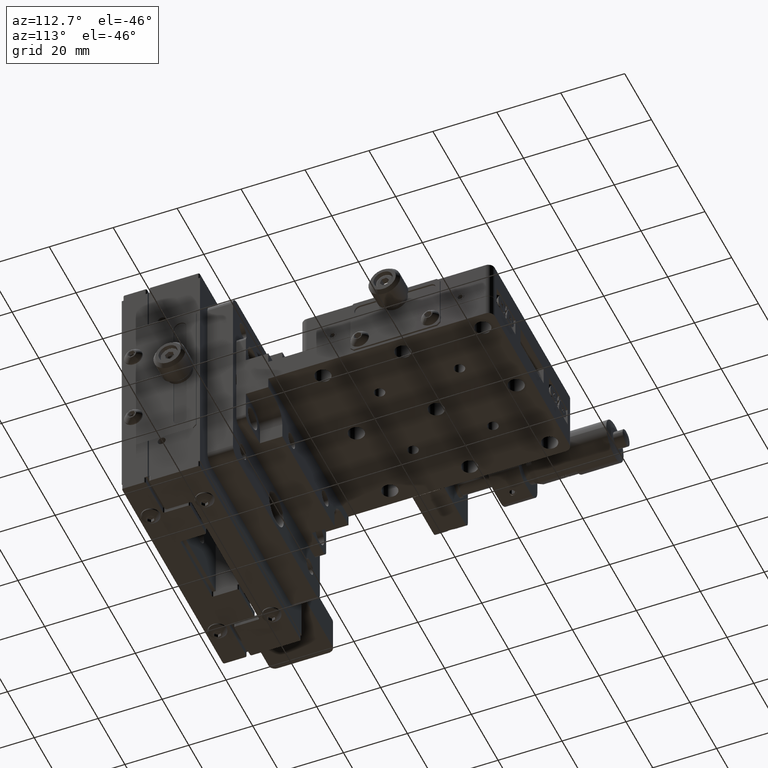
[diagram: clean part render]
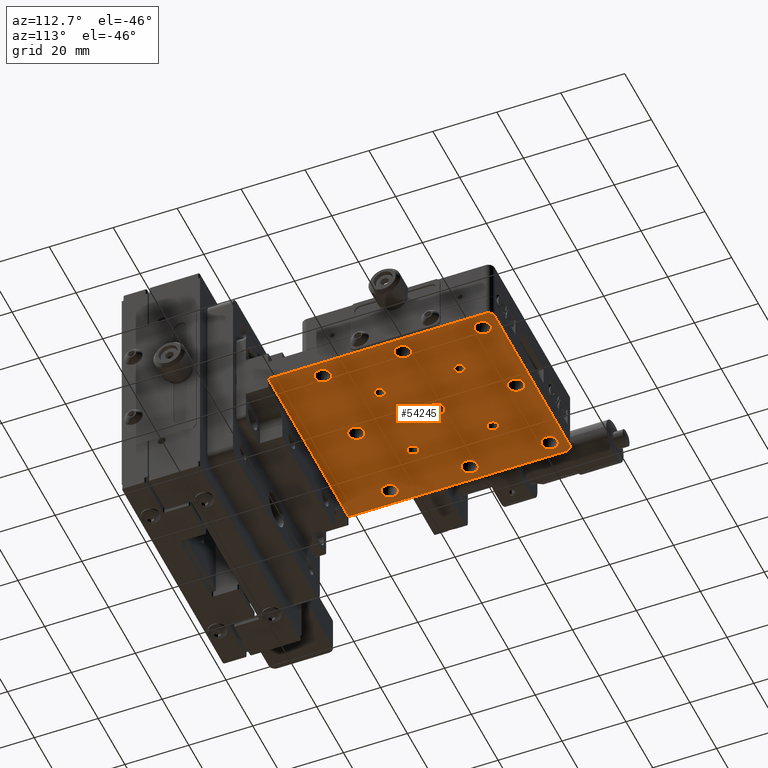
[diagram: same view with one face highlighted and labeled with its STEP entity id]
A machine part, auxiliary view. The second image highlights one B-rep face of the part: STEP entity #54245.
In plain terms, the highlighted planar face has unit normal (0, -0, 1).
Its self-contained STEP definition (entity closure, byte-faithful):
#153 = EDGE_CURVE ( 'NONE', #53122, #63395, #7263, .T. ) ;
#306 = DIRECTION ( 'NONE',  ( 0.0000000000000000000, 1.000000000000000000, 2.628368902995186700E-016 ) ) ;
#580 = CARTESIAN_POINT ( 'NONE',  ( -12.50000000000007600, 71.65000000000024700, -3.499999999999931200 ) ) ;
#1148 = CIRCLE ( 'NONE', #40706, 2.499999999999988500 ) ;
#1216 = DIRECTION ( 'NONE',  ( 0.0000000000000000000, 1.000000000000000000, 1.734723475976815200E-016 ) ) ;
#1233 = AXIS2_PLACEMENT_3D ( 'NONE', #49389, #19116, #54452 ) ;
#1262 = AXIS2_PLACEMENT_3D ( 'NONE', #12143, #47543, #17240 ) ;
#1454 = CARTESIAN_POINT ( 'NONE',  ( -2.909660393859445900E-015, 60.00000000000026300, -3.499999999999951200 ) ) ;
#1705 = ORIENTED_EDGE ( 'NONE', *, *, #35743, .F. ) ;
#1865 = ORIENTED_EDGE ( 'NONE', *, *, #42310, .F. ) ;
#1979 = EDGE_LOOP ( 'NONE', ( #57376, #49546 ) ) ;
#2120 = ORIENTED_EDGE ( 'NONE', *, *, #59145, .T. ) ;
#2196 = AXIS2_PLACEMENT_3D ( 'NONE', #25852, #61205, #30951 ) ;
#2227 = CARTESIAN_POINT ( 'NONE',  ( -24.99999999999999600, 55.00000000000027000, -3.499999999999929800 ) ) ;
#2233 = VERTEX_POINT ( 'NONE', #53600 ) ;
#2484 = EDGE_LOOP ( 'NONE', ( #12495, #22848 ) ) ;
#2511 = CARTESIAN_POINT ( 'NONE',  ( 24.99999999999998600, 57.50000000000027700, -3.499999999999990200 ) ) ;
#3407 = EDGE_CURVE ( 'NONE', #57933, #2233, #31504, .T. ) ;
#3413 = ORIENTED_EDGE ( 'NONE', *, *, #3407, .F. ) ;
#3553 = EDGE_LOOP ( 'NONE', ( #52028, #1705 ) ) ;
#3615 = CARTESIAN_POINT ( 'NONE',  ( 24.99999999999992500, 85.00000000000028400, -3.499999999999986200 ) ) ;
#3641 = AXIS2_PLACEMENT_3D ( 'NONE', #19834, #55166, #24972 ) ;
#3664 = ORIENTED_EDGE ( 'NONE', *, *, #27355, .F. ) ;
#3827 = CIRCLE ( 'NONE', #29497, 2.000000000000001800 ) ;
#5201 = CARTESIAN_POINT ( 'NONE',  ( 1.176011414782421200E-015, 55.00000000000028400, -3.499999999999966700 ) ) ;
#5216 = VERTEX_POINT ( 'NONE', #35269 ) ;
#5546 = VERTEX_POINT ( 'NONE', #52707 ) ;
#5602 = ORIENTED_EDGE ( 'NONE', *, *, #18945, .F. ) ;
#5683 = EDGE_CURVE ( 'NONE', #20408, #35049, #45443, .T. ) ;
#5763 = AXIS2_PLACEMENT_3D ( 'NONE', #38302, #7984, #43335 ) ;
#5779 = EDGE_CURVE ( 'NONE', #51133, #8688, #10620, .T. ) ;
#6370 = EDGE_LOOP ( 'NONE', ( #34543, #19363 ) ) ;
#7014 = CARTESIAN_POINT ( 'NONE',  ( 30.00000000000000400, 112.5000000000002800, -3.500000000000002200 ) ) ;
#7158 = FACE_BOUND ( 'NONE', #32233, .T. ) ;
#7234 = CARTESIAN_POINT ( 'NONE',  ( -25.00000000000007800, 82.50000000000028400, -3.499999999999909400 ) ) ;
#7263 = LINE ( 'NONE', #36998, #19153 ) ;
#7631 = DIRECTION ( 'NONE',  ( 0.0000000000000000000, 1.000000000000000000, 1.734723475976815200E-016 ) ) ;
#7690 = VERTEX_POINT ( 'NONE', #43094 ) ;
#7839 = CIRCLE ( 'NONE', #3641, 2.499999999999988500 ) ;
#7984 = DIRECTION ( 'NONE',  ( -8.818902597906268200E-016, 6.009861815198150700E-015, -1.000000000000000000 ) ) ;
#8181 = AXIS2_PLACEMENT_3D ( 'NONE', #29830, #65136, #34898 ) ;
#8261 = EDGE_CURVE ( 'NONE', #50230, #9044, #1148, .T. ) ;
#8671 = CARTESIAN_POINT ( 'NONE',  ( -2.563213294065521200E-015, 57.50000000000027000, -3.499999999999951600 ) ) ;
#8688 = VERTEX_POINT ( 'NONE', #30212 ) ;
#8763 = FACE_BOUND ( 'NONE', #57083, .T. ) ;
#9044 = VERTEX_POINT ( 'NONE', #9100 ) ;
#9100 = CARTESIAN_POINT ( 'NONE',  ( 24.99999999999999600, 110.0000000000002700, -3.499999999999980900 ) ) ;
#9206 = CARTESIAN_POINT ( 'NONE',  ( 12.50000000000000400, 95.00000000000029800, -3.499999999999964500 ) ) ;
#9624 = ORIENTED_EDGE ( 'NONE', *, *, #28084, .F. ) ;
#10351 = FACE_BOUND ( 'NONE', #33195, .T. ) ;
#10451 = EDGE_CURVE ( 'NONE', #44037, #36416, #60859, .T. ) ;
#10620 = CIRCLE ( 'NONE', #53460, 2.499999999999988500 ) ;
#10784 = ORIENTED_EDGE ( 'NONE', *, *, #153, .T. ) ;
#11251 = CARTESIAN_POINT ( 'NONE',  ( -24.99999999999998600, 105.0000000000002600, -3.499999999999921000 ) ) ;
#11374 = CIRCLE ( 'NONE', #13960, 2.499999999999988500 ) ;
#11695 = AXIS2_PLACEMENT_3D ( 'NONE', #13339, #48704, #18446 ) ;
#11898 = FACE_BOUND ( 'NONE', #2484, .T. ) ;
#11956 = AXIS2_PLACEMENT_3D ( 'NONE', #60939, #30673, #306 ) ;
#12143 = CARTESIAN_POINT ( 'NONE',  ( 28.00000000000000000, 110.5000000000002800, -3.499999999999991600 ) ) ;
#12317 = DIRECTION ( 'NONE',  ( 0.0000000000000000000, 1.000000000000000000, 1.734723475976815200E-016 ) ) ;
#12495 = ORIENTED_EDGE ( 'NONE', *, *, #59227, .F. ) ;
#12725 = CIRCLE ( 'NONE', #8181, 2.499999999999988500 ) ;
#13075 = CARTESIAN_POINT ( 'NONE',  ( -6.153883552326263100E-014, 82.50000000000029800, -3.499999999999948000 ) ) ;
#13339 = CARTESIAN_POINT ( 'NONE',  ( 12.50000000000000000, 70.00000000000028400, -3.499999999999968000 ) ) ;
#13722 = DIRECTION ( 'NONE',  ( -1.385788399175705800E-016, 1.000000000000000000, 1.734723475976815200E-016 ) ) ;
#13899 = CARTESIAN_POINT ( 'NONE',  ( -25.00000000000007800, 85.00000000000027000, -3.499999999999909000 ) ) ;
#13960 = AXIS2_PLACEMENT_3D ( 'NONE', #26649, #61992, #31744 ) ;
#13998 = CARTESIAN_POINT ( 'NONE',  ( -27.99999999999999300, 112.5000000000002600, -3.499999999999905900 ) ) ;
#14283 = DIRECTION ( 'NONE',  ( 0.0000000000000000000, 1.000000000000000000, 2.628368902995186700E-016 ) ) ;
#14382 = CARTESIAN_POINT ( 'NONE',  ( -12.50000000000007300, 95.00000000000028400, -3.499999999999928100 ) ) ;
#14671 = CIRCLE ( 'NONE', #30303, 2.499999999999988500 ) ;
#15275 = EDGE_CURVE ( 'NONE', #35049, #20408, #12725, .T. ) ;
#15740 = EDGE_LOOP ( 'NONE', ( #35914, #16434 ) ) ;
#16161 = DIRECTION ( 'NONE',  ( 1.385788399175705800E-016, -1.000000000000000000, -1.614549571717165100E-016 ) ) ;
#16434 = ORIENTED_EDGE ( 'NONE', *, *, #61600, .F. ) ;
#16709 = DIRECTION ( 'NONE',  ( -8.818902597906268200E-016, 6.009861815198150700E-015, -1.000000000000000000 ) ) ;
#17060 = EDGE_CURVE ( 'NONE', #34204, #24784, #54194, .T. ) ;
#17240 = DIRECTION ( 'NONE',  ( 0.0000000000000000000, 1.000000000000000000, 2.168404344971006900E-016 ) ) ;
#18164 = DIRECTION ( 'NONE',  ( -1.385788399175692000E-016, 1.000000000000000000, 1.734723475976815200E-016 ) ) ;
#18324 = EDGE_CURVE ( 'NONE', #36416, #44037, #34296, .T. ) ;
#18446 = DIRECTION ( 'NONE',  ( 0.0000000000000000000, 1.000000000000000000, 2.628368902995186700E-016 ) ) ;
#18675 = CARTESIAN_POINT ( 'NONE',  ( -27.99999999999999300, 110.5000000000002600, -3.499999999999906300 ) ) ;
#18945 = EDGE_CURVE ( 'NONE', #18953, #5546, #3827, .T. ) ;
#18953 = VERTEX_POINT ( 'NONE', #13998 ) ;
#19008 = EDGE_LOOP ( 'NONE', ( #47336, #43174 ) ) ;
#19116 = DIRECTION ( 'NONE',  ( -8.818902597906268200E-016, 6.009861815198150700E-015, -1.000000000000000000 ) ) ;
#19153 = VECTOR ( 'NONE', #53096, 1000.000000000000000 ) ;
#19363 = ORIENTED_EDGE ( 'NONE', *, *, #36401, .F. ) ;
#19472 = CARTESIAN_POINT ( 'NONE',  ( 12.50000000000000000, 70.00000000000028400, -3.499999999999968000 ) ) ;
#19478 = DIRECTION ( 'NONE',  ( 0.0000000000000000000, 1.000000000000000000, 2.628368902995186700E-016 ) ) ;
#19722 = AXIS2_PLACEMENT_3D ( 'NONE', #50822, #20549, #55898 ) ;
#19797 = EDGE_LOOP ( 'NONE', ( #3664, #5602, #53015, #30349, #2120, #10784 ) ) ;
#19834 = CARTESIAN_POINT ( 'NONE',  ( 24.99999999999998600, 57.50000000000027700, -3.499999999999990200 ) ) ;
#20408 = VERTEX_POINT ( 'NONE', #2227 ) ;
#20432 = DIRECTION ( 'NONE',  ( -8.818902597906268200E-016, 6.009861815198150700E-015, -1.000000000000000000 ) ) ;
#20494 = VERTEX_POINT ( 'NONE', #38528 ) ;
#20549 = DIRECTION ( 'NONE',  ( -8.818902597906268200E-016, 6.009861815198150700E-015, -1.000000000000000000 ) ) ;
#20623 = FACE_BOUND ( 'NONE', #25585, .T. ) ;
#20783 = CARTESIAN_POINT ( 'NONE',  ( -12.50000000000006900, 93.35000000000029300, -3.499999999999938300 ) ) ;
#21184 = DIRECTION ( 'NONE',  ( -8.818902597906268200E-016, 6.009861815198150700E-015, -1.000000000000000000 ) ) ;
#21201 = CARTESIAN_POINT ( 'NONE',  ( -24.99999999999998900, 107.5000000000002400, -3.499999999999905900 ) ) ;
#21650 = AXIS2_PLACEMENT_3D ( 'NONE', #21201, #56573, #26314 ) ;
#21886 = DIRECTION ( 'NONE',  ( -8.818902597906268200E-016, 6.009861815198150700E-015, -1.000000000000000000 ) ) ;
#22212 = FACE_BOUND ( 'NONE', #6370, .T. ) ;
#22229 = CARTESIAN_POINT ( 'NONE',  ( 30.00000000000000000, 42.50000000000028400, -3.500000000000008400 ) ) ;
#22506 = VERTEX_POINT ( 'NONE', #35181 ) ;
#22623 = ORIENTED_EDGE ( 'NONE', *, *, #48404, .F. ) ;
#22723 = CARTESIAN_POINT ( 'NONE',  ( 30.00000000000000400, 112.5000000000002800, -3.500000000000002200 ) ) ;
#22848 = ORIENTED_EDGE ( 'NONE', *, *, #23787, .F. ) ;
#22904 = DIRECTION ( 'NONE',  ( -8.818902597906268200E-016, 6.009861815198150700E-015, -1.000000000000000000 ) ) ;
#23764 = CARTESIAN_POINT ( 'NONE',  ( -25.00000000000000000, 57.50000000000025600, -3.499999999999914700 ) ) ;
#23787 = EDGE_CURVE ( 'NONE', #60655, #24418, #37034, .T. ) ;
#23791 = DIRECTION ( 'NONE',  ( 0.0000000000000000000, -1.000000000000000000, -2.168404344971006900E-016 ) ) ;
#24115 = ORIENTED_EDGE ( 'NONE', *, *, #15275, .F. ) ;
#24418 = VERTEX_POINT ( 'NONE', #58357 ) ;
#24609 = DIRECTION ( 'NONE',  ( 0.0000000000000000000, 1.000000000000000000, 2.628368902995186700E-016 ) ) ;
#24663 = VERTEX_POINT ( 'NONE', #49913 ) ;
#24784 = VERTEX_POINT ( 'NONE', #580 ) ;
#24833 = DIRECTION ( 'NONE',  ( -8.818902597906268200E-016, 6.009861815198150700E-015, -1.000000000000000000 ) ) ;
#24972 = DIRECTION ( 'NONE',  ( 0.0000000000000000000, 1.000000000000000000, 1.734723475976815200E-016 ) ) ;
#25259 = AXIS2_PLACEMENT_3D ( 'NONE', #55028, #24833, #60159 ) ;
#25426 = LINE ( 'NONE', #7014, #64126 ) ;
#25585 = EDGE_LOOP ( 'NONE', ( #51938, #47283 ) ) ;
#25852 = CARTESIAN_POINT ( 'NONE',  ( -24.99999999999998900, 107.5000000000002400, -3.499999999999905900 ) ) ;
#26134 = CARTESIAN_POINT ( 'NONE',  ( 30.00000000000000400, 112.5000000000002800, -3.500000000000002200 ) ) ;
#26314 = DIRECTION ( 'NONE',  ( 0.0000000000000000000, 1.000000000000000000, 1.734723475976815200E-016 ) ) ;
#26411 = AXIS2_PLACEMENT_3D ( 'NONE', #23764, #59099, #28858 ) ;
#26528 = AXIS2_PLACEMENT_3D ( 'NONE', #22723, #58086, #27829 ) ;
#26534 = EDGE_CURVE ( 'NONE', #39766, #24663, #33216, .T. ) ;
#26649 = CARTESIAN_POINT ( 'NONE',  ( -9.492155289944042200E-015, 107.5000000000002600, -3.499999999999942700 ) ) ;
#26732 = DIRECTION ( 'NONE',  ( -1.000000000000000000, -6.383782391597196200E-016, 1.759270461521471900E-015 ) ) ;
#27355 = EDGE_CURVE ( 'NONE', #5546, #63395, #55112, .T. ) ;
#27592 = PLANE ( 'NONE',  #26528 ) ;
#27760 = AXIS2_PLACEMENT_3D ( 'NONE', #53159, #22904, #58265 ) ;
#27829 = DIRECTION ( 'NONE',  ( -1.000000000000000000, -6.383782391597196200E-016, 1.759270461521471900E-015 ) ) ;
#28084 = EDGE_CURVE ( 'NONE', #56417, #5216, #64450, .T. ) ;
#28858 = DIRECTION ( 'NONE',  ( 0.0000000000000000000, 1.000000000000000000, 1.734723475976815200E-016 ) ) ;
#28930 = VERTEX_POINT ( 'NONE', #57539 ) ;
#29113 = AXIS2_PLACEMENT_3D ( 'NONE', #19472, #54818, #24609 ) ;
#29162 = DIRECTION ( 'NONE',  ( -8.818902597906268200E-016, 6.009861815198150700E-015, -1.000000000000000000 ) ) ;
#29497 = AXIS2_PLACEMENT_3D ( 'NONE', #18675, #54021, #23791 ) ;
#29792 = AXIS2_PLACEMENT_3D ( 'NONE', #46999, #16709, #52059 ) ;
#29830 = CARTESIAN_POINT ( 'NONE',  ( -25.00000000000000000, 57.50000000000025600, -3.499999999999914700 ) ) ;
#30152 = EDGE_CURVE ( 'NONE', #34409, #32056, #34571, .T. ) ;
#30212 = CARTESIAN_POINT ( 'NONE',  ( -5.779961081441468300E-014, 80.00000000000031300, -3.499999999999963100 ) ) ;
#30303 = AXIS2_PLACEMENT_3D ( 'NONE', #2511, #37944, #7631 ) ;
#30349 = ORIENTED_EDGE ( 'NONE', *, *, #63497, .F. ) ;
#30638 = AXIS2_PLACEMENT_3D ( 'NONE', #14382, #49745, #19478 ) ;
#30673 = DIRECTION ( 'NONE',  ( -8.818902597906268200E-016, 6.009861815198150700E-015, -1.000000000000000000 ) ) ;
#30765 = EDGE_LOOP ( 'NONE', ( #9624, #58602 ) ) ;
#30820 = ORIENTED_EDGE ( 'NONE', *, *, #45499, .F. ) ;
#30951 = DIRECTION ( 'NONE',  ( 0.0000000000000000000, 1.000000000000000000, 1.734723475976815200E-016 ) ) ;
#31376 = VERTEX_POINT ( 'NONE', #5201 ) ;
#31504 = CIRCLE ( 'NONE', #46152, 2.499999999999988500 ) ;
#31598 = DIRECTION ( 'NONE',  ( -8.818902597906268200E-016, 6.009861815198150700E-015, -1.000000000000000000 ) ) ;
#31694 = EDGE_CURVE ( 'NONE', #5216, #56417, #64980, .T. ) ;
#31744 = DIRECTION ( 'NONE',  ( -1.385788399175704300E-016, 1.000000000000000000, 1.734723475976815200E-016 ) ) ;
#31791 = CIRCLE ( 'NONE', #11956, 1.649999999999984800 ) ;
#32056 = VERTEX_POINT ( 'NONE', #37214 ) ;
#32233 = EDGE_LOOP ( 'NONE', ( #30820, #58993 ) ) ;
#32292 = VECTOR ( 'NONE', #56816, 1000.000000000000000 ) ;
#32513 = FACE_OUTER_BOUND ( 'NONE', #19797, .T. ) ;
#33195 = EDGE_LOOP ( 'NONE', ( #35739, #63592 ) ) ;
#33216 = CIRCLE ( 'NONE', #63444, 1.649999999999984800 ) ;
#33706 = EDGE_CURVE ( 'NONE', #52422, #7690, #44185, .T. ) ;
#34089 = FACE_BOUND ( 'NONE', #15740, .T. ) ;
#34204 = VERTEX_POINT ( 'NONE', #62010 ) ;
#34296 = CIRCLE ( 'NONE', #37888, 2.499999999999988500 ) ;
#34409 = VERTEX_POINT ( 'NONE', #48483 ) ;
#34543 = ORIENTED_EDGE ( 'NONE', *, *, #59836, .F. ) ;
#34571 = CIRCLE ( 'NONE', #11695, 1.649999999999984800 ) ;
#34898 = DIRECTION ( 'NONE',  ( 0.0000000000000000000, 1.000000000000000000, 1.734723475976815200E-016 ) ) ;
#35049 = VERTEX_POINT ( 'NONE', #45088 ) ;
#35181 = CARTESIAN_POINT ( 'NONE',  ( 24.99999999999998900, 55.00000000000029100, -3.500000000000005300 ) ) ;
#35234 = VERTEX_POINT ( 'NONE', #1454 ) ;
#35269 = CARTESIAN_POINT ( 'NONE',  ( 24.99999999999992900, 80.00000000000031300, -3.500000000000001800 ) ) ;
#35673 = FACE_BOUND ( 'NONE', #3553, .T. ) ;
#35739 = ORIENTED_EDGE ( 'NONE', *, *, #26534, .F. ) ;
#35743 = EDGE_CURVE ( 'NONE', #32056, #34409, #62684, .T. ) ;
#35914 = ORIENTED_EDGE ( 'NONE', *, *, #5779, .F. ) ;
#36401 = EDGE_CURVE ( 'NONE', #22506, #20494, #7839, .T. ) ;
#36416 = VERTEX_POINT ( 'NONE', #45040 ) ;
#36511 = CIRCLE ( 'NONE', #19722, 2.499999999999988500 ) ;
#36794 = EDGE_LOOP ( 'NONE', ( #1865, #3413 ) ) ;
#36967 = VERTEX_POINT ( 'NONE', #40955 ) ;
#36998 = CARTESIAN_POINT ( 'NONE',  ( 30.00000000000000000, 42.50000000000028400, -3.500000000000013300 ) ) ;
#37034 = CIRCLE ( 'NONE', #30638, 1.649999999999984800 ) ;
#37098 = CIRCLE ( 'NONE', #51334, 2.499999999999988500 ) ;
#37214 = CARTESIAN_POINT ( 'NONE',  ( 12.50000000000000400, 68.35000000000029300, -3.499999999999977800 ) ) ;
#37888 = AXIS2_PLACEMENT_3D ( 'NONE', #7234, #42608, #12317 ) ;
#37944 = DIRECTION ( 'NONE',  ( -8.818902597906268200E-016, 6.009861815198150700E-015, -1.000000000000000000 ) ) ;
#38302 = CARTESIAN_POINT ( 'NONE',  ( 24.99999999999999600, 107.5000000000002700, -3.499999999999981300 ) ) ;
#38528 = CARTESIAN_POINT ( 'NONE',  ( 24.99999999999998600, 60.00000000000027000, -3.499999999999989800 ) ) ;
#39766 = VERTEX_POINT ( 'NONE', #55508 ) ;
#40706 = AXIS2_PLACEMENT_3D ( 'NONE', #61843, #31598, #1216 ) ;
#40955 = CARTESIAN_POINT ( 'NONE',  ( 28.00000000000000000, 112.5000000000002800, -3.499999999999997300 ) ) ;
#41374 = CARTESIAN_POINT ( 'NONE',  ( -30.00000000000005000, 112.5000000000002600, -3.499999999999894800 ) ) ;
#41797 = CIRCLE ( 'NONE', #59215, 2.499999999999988500 ) ;
#42265 = CIRCLE ( 'NONE', #1262, 2.000000000000001800 ) ;
#42310 = EDGE_CURVE ( 'NONE', #2233, #57933, #11374, .T. ) ;
#42518 = CIRCLE ( 'NONE', #45454, 1.649999999999984800 ) ;
#42608 = DIRECTION ( 'NONE',  ( -8.818902597906268200E-016, 6.009861815198150700E-015, -1.000000000000000000 ) ) ;
#42611 = EDGE_CURVE ( 'NONE', #7690, #52422, #43729, .T. ) ;
#43094 = CARTESIAN_POINT ( 'NONE',  ( -24.99999999999998900, 110.0000000000002400, -3.499999999999905400 ) ) ;
#43154 = EDGE_CURVE ( 'NONE', #24663, #39766, #31791, .T. ) ;
#43174 = ORIENTED_EDGE ( 'NONE', *, *, #17060, .F. ) ;
#43335 = DIRECTION ( 'NONE',  ( 0.0000000000000000000, 1.000000000000000000, 1.734723475976815200E-016 ) ) ;
#43729 = CIRCLE ( 'NONE', #21650, 2.499999999999988500 ) ;
#44016 = DIRECTION ( 'NONE',  ( -8.818902597906268200E-016, 6.009861815198150700E-015, -1.000000000000000000 ) ) ;
#44036 = CIRCLE ( 'NONE', #5763, 2.499999999999988500 ) ;
#44037 = VERTEX_POINT ( 'NONE', #13899 ) ;
#44185 = CIRCLE ( 'NONE', #2196, 2.499999999999988500 ) ;
#44570 = DIRECTION ( 'NONE',  ( -8.818902597906268200E-016, 6.009861815198150700E-015, -1.000000000000000000 ) ) ;
#45040 = CARTESIAN_POINT ( 'NONE',  ( -25.00000000000007500, 80.00000000000029800, -3.499999999999924500 ) ) ;
#45088 = CARTESIAN_POINT ( 'NONE',  ( -25.00000000000000000, 60.00000000000024900, -3.499999999999914300 ) ) ;
#45367 = CARTESIAN_POINT ( 'NONE',  ( 25.00000000000000000, 105.0000000000002800, -3.499999999999996400 ) ) ;
#45443 = CIRCLE ( 'NONE', #26411, 2.499999999999988500 ) ;
#45454 = AXIS2_PLACEMENT_3D ( 'NONE', #52152, #21886, #57254 ) ;
#45474 = CIRCLE ( 'NONE', #25259, 1.649999999999984800 ) ;
#45499 = EDGE_CURVE ( 'NONE', #9044, #50230, #44036, .T. ) ;
#45935 = FACE_BOUND ( 'NONE', #1979, .T. ) ;
#46086 = ORIENTED_EDGE ( 'NONE', *, *, #58879, .F. ) ;
#46152 = AXIS2_PLACEMENT_3D ( 'NONE', #51449, #21184, #56548 ) ;
#46999 = CARTESIAN_POINT ( 'NONE',  ( -12.50000000000007600, 70.00000000000025600, -3.499999999999931600 ) ) ;
#47283 = ORIENTED_EDGE ( 'NONE', *, *, #18324, .F. ) ;
#47336 = ORIENTED_EDGE ( 'NONE', *, *, #60513, .F. ) ;
#47521 = FACE_BOUND ( 'NONE', #30765, .T. ) ;
#47543 = DIRECTION ( 'NONE',  ( 8.818902597906268200E-016, -6.009861815198150700E-015, 1.000000000000000000 ) ) ;
#48404 = EDGE_CURVE ( 'NONE', #31376, #35234, #36511, .T. ) ;
#48453 = DIRECTION ( 'NONE',  ( -8.818902597906268200E-016, 6.009861815198150700E-015, -1.000000000000000000 ) ) ;
#48483 = CARTESIAN_POINT ( 'NONE',  ( 12.50000000000000000, 71.65000000000027600, -3.499999999999967600 ) ) ;
#48704 = DIRECTION ( 'NONE',  ( -8.818902597906268200E-016, 6.009861815198150700E-015, -1.000000000000000000 ) ) ;
#49389 = CARTESIAN_POINT ( 'NONE',  ( 24.99999999999992500, 82.50000000000029800, -3.499999999999986700 ) ) ;
#49546 = ORIENTED_EDGE ( 'NONE', *, *, #33706, .F. ) ;
#49745 = DIRECTION ( 'NONE',  ( -8.818902597906268200E-016, 6.009861815198150700E-015, -1.000000000000000000 ) ) ;
#49913 = CARTESIAN_POINT ( 'NONE',  ( 12.50000000000000700, 93.35000000000030700, -3.499999999999974700 ) ) ;
#50230 = VERTEX_POINT ( 'NONE', #45367 ) ;
#50678 = FACE_BOUND ( 'NONE', #19008, .T. ) ;
#50710 = CARTESIAN_POINT ( 'NONE',  ( -6.153883552326263100E-014, 82.50000000000029800, -3.499999999999948000 ) ) ;
#50822 = CARTESIAN_POINT ( 'NONE',  ( -2.563213294065521200E-015, 57.50000000000027000, -3.499999999999951600 ) ) ;
#51133 = VERTEX_POINT ( 'NONE', #55151 ) ;
#51334 = AXIS2_PLACEMENT_3D ( 'NONE', #8671, #44016, #13722 ) ;
#51449 = CARTESIAN_POINT ( 'NONE',  ( -9.492155289944042200E-015, 107.5000000000002600, -3.499999999999942700 ) ) ;
#51938 = ORIENTED_EDGE ( 'NONE', *, *, #10451, .F. ) ;
#52028 = ORIENTED_EDGE ( 'NONE', *, *, #30152, .F. ) ;
#52059 = DIRECTION ( 'NONE',  ( 0.0000000000000000000, 1.000000000000000000, 2.628368902995186700E-016 ) ) ;
#52152 = CARTESIAN_POINT ( 'NONE',  ( -12.50000000000007300, 95.00000000000028400, -3.499999999999928100 ) ) ;
#52422 = VERTEX_POINT ( 'NONE', #11251 ) ;
#52707 = CARTESIAN_POINT ( 'NONE',  ( -29.99999999999999600, 110.5000000000002700, -3.499999999999901900 ) ) ;
#52768 = EDGE_LOOP ( 'NONE', ( #24115, #58328 ) ) ;
#53015 = ORIENTED_EDGE ( 'NONE', *, *, #54186, .F. ) ;
#53096 = DIRECTION ( 'NONE',  ( -1.000000000000000000, -6.383782391597196200E-016, 1.759270461521471900E-015 ) ) ;
#53122 = VERTEX_POINT ( 'NONE', #22229 ) ;
#53159 = CARTESIAN_POINT ( 'NONE',  ( -25.00000000000007800, 82.50000000000028400, -3.499999999999909400 ) ) ;
#53460 = AXIS2_PLACEMENT_3D ( 'NONE', #50710, #20432, #55783 ) ;
#53521 = VECTOR ( 'NONE', #16161, 1000.000000000000000 ) ;
#53600 = CARTESIAN_POINT ( 'NONE',  ( -9.838602389737967000E-015, 110.0000000000002600, -3.499999999999942300 ) ) ;
#54021 = DIRECTION ( 'NONE',  ( 8.818902597906268200E-016, -6.009861815198150700E-015, 1.000000000000000000 ) ) ;
#54186 = EDGE_CURVE ( 'NONE', #36967, #18953, #25426, .T. ) ;
#54194 = CIRCLE ( 'NONE', #29792, 1.649999999999984800 ) ;
#54245 = ADVANCED_FACE ( 'NONE', ( #35673, #10351, #50678, #11898, #22212, #8763, #60972, #47521, #34089, #20623, #7158, #59369, #45935, #32513 ), #27592, .F. ) ;
#54452 = DIRECTION ( 'NONE',  ( 0.0000000000000000000, 1.000000000000000000, 1.734723475976815200E-016 ) ) ;
#54818 = DIRECTION ( 'NONE',  ( -8.818902597906268200E-016, 6.009861815198150700E-015, -1.000000000000000000 ) ) ;
#55028 = CARTESIAN_POINT ( 'NONE',  ( -12.50000000000007600, 70.00000000000025600, -3.499999999999931600 ) ) ;
#55112 = LINE ( 'NONE', #41374, #53521 ) ;
#55151 = CARTESIAN_POINT ( 'NONE',  ( -6.188528262305654800E-014, 85.00000000000028400, -3.499999999999947600 ) ) ;
#55166 = DIRECTION ( 'NONE',  ( -8.818902597906268200E-016, 6.009861815198150700E-015, -1.000000000000000000 ) ) ;
#55508 = CARTESIAN_POINT ( 'NONE',  ( 12.50000000000000400, 96.65000000000027600, -3.499999999999964000 ) ) ;
#55783 = DIRECTION ( 'NONE',  ( -1.385788399175692000E-016, 1.000000000000000000, 1.734723475976815200E-016 ) ) ;
#55898 = DIRECTION ( 'NONE',  ( -1.385788399175705800E-016, 1.000000000000000000, 1.734723475976815200E-016 ) ) ;
#56382 = CARTESIAN_POINT ( 'NONE',  ( -30.00000000000005300, 42.50000000000024900, -3.499999999999914700 ) ) ;
#56417 = VERTEX_POINT ( 'NONE', #3615 ) ;
#56548 = DIRECTION ( 'NONE',  ( -1.385788399175704300E-016, 1.000000000000000000, 1.734723475976815200E-016 ) ) ;
#56573 = DIRECTION ( 'NONE',  ( -8.818902597906268200E-016, 6.009861815198150700E-015, -1.000000000000000000 ) ) ;
#56816 = DIRECTION ( 'NONE',  ( 1.385788399175705800E-016, -1.000000000000000000, -1.614549571717165100E-016 ) ) ;
#57083 = EDGE_LOOP ( 'NONE', ( #46086, #22623 ) ) ;
#57254 = DIRECTION ( 'NONE',  ( 0.0000000000000000000, 1.000000000000000000, 2.628368902995186700E-016 ) ) ;
#57345 = AXIS2_PLACEMENT_3D ( 'NONE', #59396, #29162, #64469 ) ;
#57376 = ORIENTED_EDGE ( 'NONE', *, *, #42611, .F. ) ;
#57539 = CARTESIAN_POINT ( 'NONE',  ( 30.00000000000000400, 110.5000000000002800, -3.499999999999995600 ) ) ;
#57933 = VERTEX_POINT ( 'NONE', #60235 ) ;
#58086 = DIRECTION ( 'NONE',  ( 1.759270461521475600E-015, -6.009861815198150700E-015, 1.000000000000000000 ) ) ;
#58265 = DIRECTION ( 'NONE',  ( 0.0000000000000000000, 1.000000000000000000, 1.734723475976815200E-016 ) ) ;
#58328 = ORIENTED_EDGE ( 'NONE', *, *, #5683, .F. ) ;
#58357 = CARTESIAN_POINT ( 'NONE',  ( -12.50000000000007300, 96.65000000000026100, -3.499999999999927600 ) ) ;
#58602 = ORIENTED_EDGE ( 'NONE', *, *, #31694, .F. ) ;
#58879 = EDGE_CURVE ( 'NONE', #35234, #31376, #37098, .T. ) ;
#58993 = ORIENTED_EDGE ( 'NONE', *, *, #8261, .F. ) ;
#59099 = DIRECTION ( 'NONE',  ( -8.818902597906268200E-016, 6.009861815198150700E-015, -1.000000000000000000 ) ) ;
#59145 = EDGE_CURVE ( 'NONE', #28930, #53122, #63893, .T. ) ;
#59215 = AXIS2_PLACEMENT_3D ( 'NONE', #13075, #48453, #18164 ) ;
#59227 = EDGE_CURVE ( 'NONE', #24418, #60655, #42518, .T. ) ;
#59369 = FACE_BOUND ( 'NONE', #36794, .T. ) ;
#59396 = CARTESIAN_POINT ( 'NONE',  ( 24.99999999999992500, 82.50000000000029800, -3.499999999999986700 ) ) ;
#59836 = EDGE_CURVE ( 'NONE', #20494, #22506, #14671, .T. ) ;
#60159 = DIRECTION ( 'NONE',  ( 0.0000000000000000000, 1.000000000000000000, 2.628368902995186700E-016 ) ) ;
#60235 = CARTESIAN_POINT ( 'NONE',  ( -5.752930581096102600E-015, 105.0000000000002700, -3.499999999999957800 ) ) ;
#60513 = EDGE_CURVE ( 'NONE', #24784, #34204, #45474, .T. ) ;
#60655 = VERTEX_POINT ( 'NONE', #20783 ) ;
#60859 = CIRCLE ( 'NONE', #27760, 2.499999999999988500 ) ;
#60939 = CARTESIAN_POINT ( 'NONE',  ( 12.50000000000000400, 95.00000000000029800, -3.499999999999964500 ) ) ;
#60972 = FACE_BOUND ( 'NONE', #52768, .T. ) ;
#61205 = DIRECTION ( 'NONE',  ( -8.818902597906268200E-016, 6.009861815198150700E-015, -1.000000000000000000 ) ) ;
#61600 = EDGE_CURVE ( 'NONE', #8688, #51133, #41797, .T. ) ;
#61843 = CARTESIAN_POINT ( 'NONE',  ( 24.99999999999999600, 107.5000000000002700, -3.499999999999981300 ) ) ;
#61992 = DIRECTION ( 'NONE',  ( -8.818902597906268200E-016, 6.009861815198150700E-015, -1.000000000000000000 ) ) ;
#62010 = CARTESIAN_POINT ( 'NONE',  ( -12.50000000000007300, 68.35000000000027900, -3.499999999999941400 ) ) ;
#62684 = CIRCLE ( 'NONE', #29113, 1.649999999999984800 ) ;
#63395 = VERTEX_POINT ( 'NONE', #56382 ) ;
#63444 = AXIS2_PLACEMENT_3D ( 'NONE', #9206, #44570, #14283 ) ;
#63497 = EDGE_CURVE ( 'NONE', #28930, #36967, #42265, .T. ) ;
#63592 = ORIENTED_EDGE ( 'NONE', *, *, #43154, .F. ) ;
#63893 = LINE ( 'NONE', #26134, #32292 ) ;
#64126 = VECTOR ( 'NONE', #26732, 1000.000000000000000 ) ;
#64450 = CIRCLE ( 'NONE', #57345, 2.499999999999988500 ) ;
#64469 = DIRECTION ( 'NONE',  ( 0.0000000000000000000, 1.000000000000000000, 1.734723475976815200E-016 ) ) ;
#64980 = CIRCLE ( 'NONE', #1233, 2.499999999999988500 ) ;
#65136 = DIRECTION ( 'NONE',  ( -8.818902597906268200E-016, 6.009861815198150700E-015, -1.000000000000000000 ) ) ;